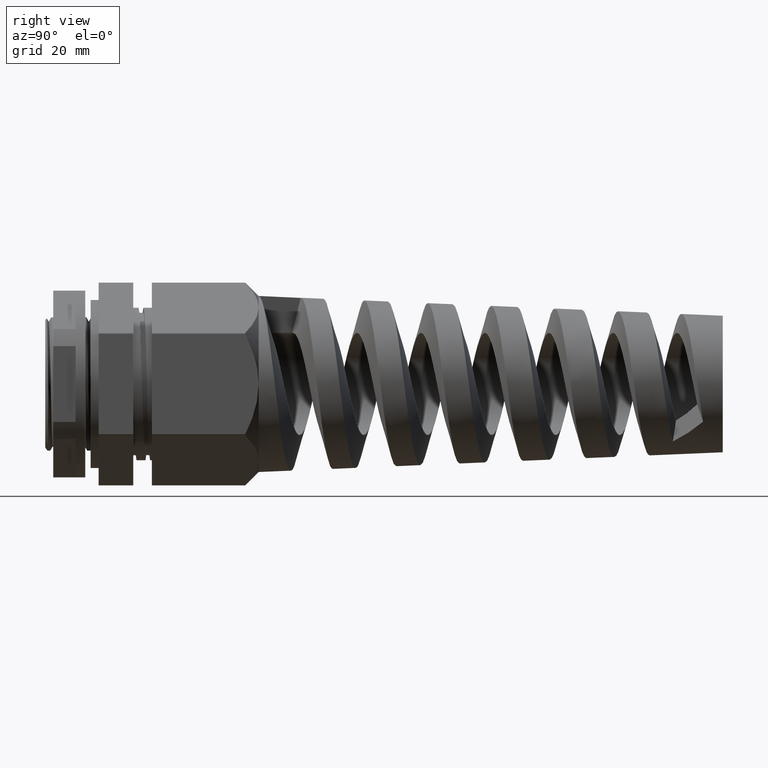
[diagram: clean part render]
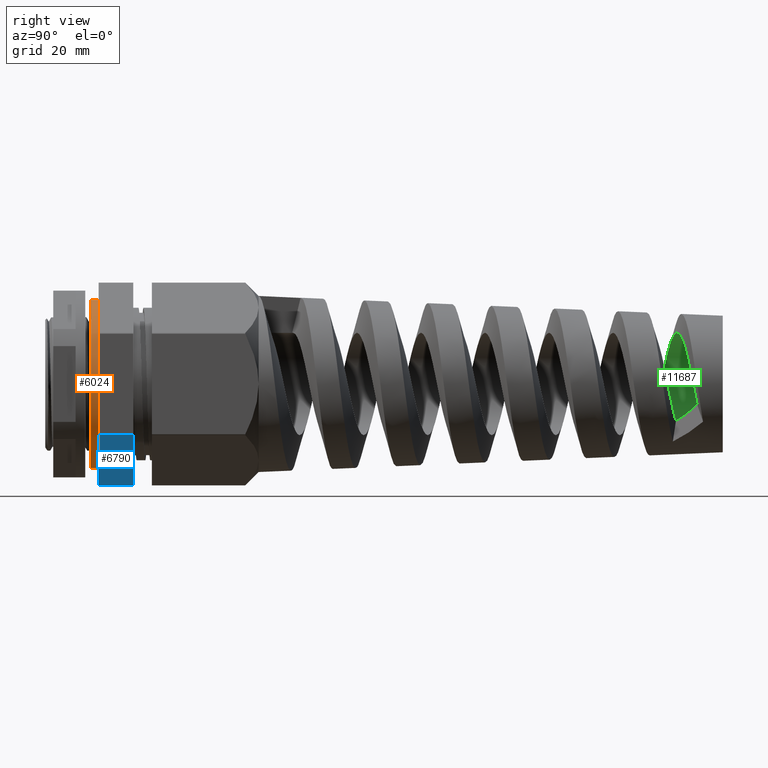
[diagram: same view with three faces highlighted in distinct colors, each labeled with its STEP entity id]
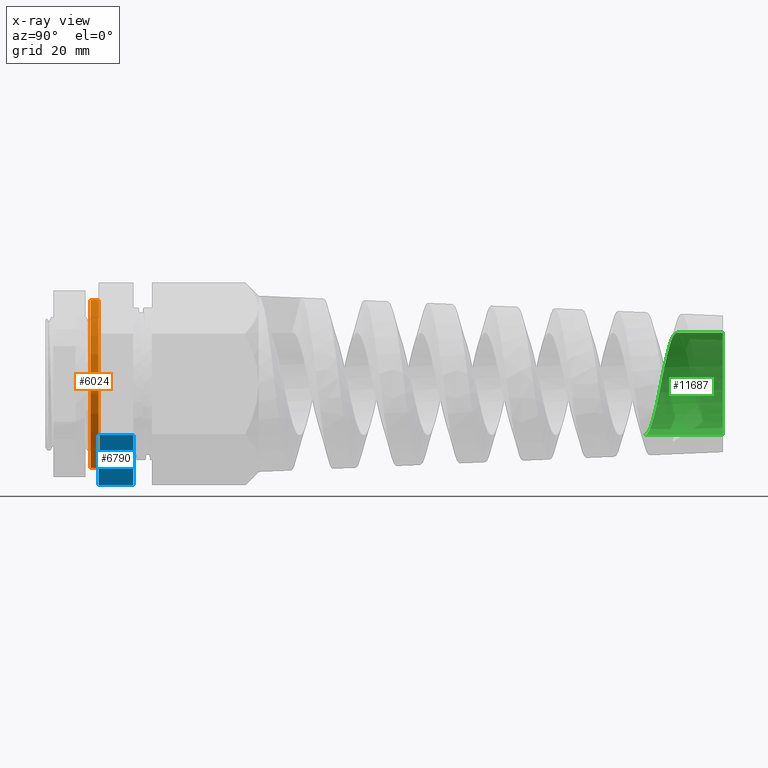
[diagram: x-ray of the same camera — body ghosted, the three highlighted faces saturated]
A machine part, right view with three faces highlighted in distinct colors.
The next image is the same camera in x-ray (body ghosted, the three faces saturated) — at least one of them is partly hidden behind the body in this view.
Their STEP definitions:

[orange] entity #6024 — the highlighted cylindrical surface (partial cylindrical patch) has radius 15.75 mm, axis along (-0, 1, -0).
#196 = DIRECTION ( 'NONE',  ( -0.0000000000000000000, 1.000000000000000000, -0.0000000000000000000 ) ) ;
#266 = DIRECTION ( 'NONE',  ( 0.0000000000000000000, 0.0000000000000000000, -1.000000000000000000 ) ) ;
#589 = DIRECTION ( 'NONE',  ( 0.0000000000000000000, -1.000000000000000000, 0.0000000000000000000 ) ) ;
#631 = CARTESIAN_POINT ( 'NONE',  ( 0.0000000000000000000, -1.500000000000000000, 0.0000000000000000000 ) ) ;
#933 = CARTESIAN_POINT ( 'NONE',  ( 1.928818708657081300E-015, -1.500000000000000000, -15.75000000000000000 ) ) ;
#1966 = CARTESIAN_POINT ( 'NONE',  ( 0.0000000000000000000, -1.500000000000000000, 15.75000000000000000 ) ) ;
#1975 = AXIS2_PLACEMENT_3D ( 'NONE', #10093, #8978, #6635 ) ;
#2068 = VECTOR ( 'NONE', #196, 1000.000000000000000 ) ;
#2076 = EDGE_CURVE ( 'NONE', #5223, #4890, #4461, .T. ) ;
#4461 = CIRCLE ( 'NONE', #9573, 15.75000000000000000 ) ;
#4533 = CARTESIAN_POINT ( 'NONE',  ( 1.928818708657081300E-015, -1.500000000000000000, -15.75000000000000000 ) ) ;
#4753 = CARTESIAN_POINT ( 'NONE',  ( 0.0000000000000000000, 0.0000000000000000000, 0.0000000000000000000 ) ) ;
#4866 = CARTESIAN_POINT ( 'NONE',  ( 0.0000000000000000000, 0.0000000000000000000, 15.75000000000000000 ) ) ;
#4890 = VERTEX_POINT ( 'NONE', #1966 ) ;
#5223 = VERTEX_POINT ( 'NONE', #4533 ) ;
#5923 = DIRECTION ( 'NONE',  ( 0.0000000000000000000, 0.0000000000000000000, -1.000000000000000000 ) ) ;
#6024 = ADVANCED_FACE ( 'NONE', ( #9217 ), #8118, .T. ) ;
#6113 = ORIENTED_EDGE ( 'NONE', *, *, #13710, .F. ) ;
#6136 = AXIS2_PLACEMENT_3D ( 'NONE', #4753, #12703, #5923 ) ;
#6635 = DIRECTION ( 'NONE',  ( 0.0000000000000000000, 0.0000000000000000000, 1.000000000000000000 ) ) ;
#6974 = CIRCLE ( 'NONE', #6136, 15.75000000000000000 ) ;
#7242 = CARTESIAN_POINT ( 'NONE',  ( 0.0000000000000000000, -1.500000000000000000, 15.75000000000000000 ) ) ;
#7899 = LINE ( 'NONE', #7242, #2068 ) ;
#8118 = CYLINDRICAL_SURFACE ( 'NONE', #1975, 15.75000000000000000 ) ;
#8223 = VERTEX_POINT ( 'NONE', #9968 ) ;
#8467 = ORIENTED_EDGE ( 'NONE', *, *, #9981, .T. ) ;
#8791 = VECTOR ( 'NONE', #11336, 1000.000000000000000 ) ;
#8978 = DIRECTION ( 'NONE',  ( -0.0000000000000000000, 1.000000000000000000, -0.0000000000000000000 ) ) ;
#9217 = FACE_OUTER_BOUND ( 'NONE', #14766, .T. ) ;
#9573 = AXIS2_PLACEMENT_3D ( 'NONE', #631, #589, #266 ) ;
#9968 = CARTESIAN_POINT ( 'NONE',  ( 1.928818708657081300E-015, 0.0000000000000000000, -15.75000000000000000 ) ) ;
#9981 = EDGE_CURVE ( 'NONE', #5223, #8223, #14662, .T. ) ;
#10093 = CARTESIAN_POINT ( 'NONE',  ( 0.0000000000000000000, -1.500000000000000000, 0.0000000000000000000 ) ) ;
#11336 = DIRECTION ( 'NONE',  ( -0.0000000000000000000, 1.000000000000000000, -0.0000000000000000000 ) ) ;
#11880 = ORIENTED_EDGE ( 'NONE', *, *, #2076, .F. ) ;
#12703 = DIRECTION ( 'NONE',  ( 0.0000000000000000000, -1.000000000000000000, 0.0000000000000000000 ) ) ;
#13565 = ORIENTED_EDGE ( 'NONE', *, *, #14264, .T. ) ;
#13710 = EDGE_CURVE ( 'NONE', #4890, #14324, #7899, .T. ) ;
#14264 = EDGE_CURVE ( 'NONE', #8223, #14324, #6974, .T. ) ;
#14324 = VERTEX_POINT ( 'NONE', #4866 ) ;
#14662 = LINE ( 'NONE', #933, #8791 ) ;
#14766 = EDGE_LOOP ( 'NONE', ( #11880, #8467, #13565, #6113 ) ) ;

[blue] entity #6790 — the highlighted planar face has unit normal (-0.5, 0, 0.866).
#446 = VERTEX_POINT ( 'NONE', #7749 ) ;
#1762 = CARTESIAN_POINT ( 'NONE',  ( 0.09141556395964207900, 0.0000000000000000000, -18.99978008279742200 ) ) ;
#1767 = CARTESIAN_POINT ( 'NONE',  ( 16.40858443604036100, 0.0000000000000000000, -9.579058242089042000 ) ) ;
#3389 = ORIENTED_EDGE ( 'NONE', *, *, #8984, .F. ) ;
#4188 = DIRECTION ( 'NONE',  ( -0.4999999999999999400, 0.0000000000000000000, 0.8660254037844387100 ) ) ;
#4647 = VECTOR ( 'NONE', #12676, 1000.000000000000000 ) ;
#4733 = EDGE_LOOP ( 'NONE', ( #3389, #11386, #8148, #13546 ) ) ;
#4887 = CARTESIAN_POINT ( 'NONE',  ( 16.40858443604036100, 6.500000000000000000, -9.579058242089047300 ) ) ;
#5271 = EDGE_CURVE ( 'NONE', #8144, #446, #13016, .T. ) ;
#5288 = CARTESIAN_POINT ( 'NONE',  ( 16.50000000000000000, 6.500000000000000000, -9.526279441628823000 ) ) ;
#6074 = VECTOR ( 'NONE', #12872, 1000.000000000000000 ) ;
#6271 = EDGE_CURVE ( 'NONE', #6331, #446, #10756, .T. ) ;
#6331 = VERTEX_POINT ( 'NONE', #4887 ) ;
#6447 = LINE ( 'NONE', #11772, #6074 ) ;
#6790 = ADVANCED_FACE ( 'NONE', ( #13851 ), #11043, .F. ) ;
#7081 = CARTESIAN_POINT ( 'NONE',  ( 16.50000000000000000, 6.500000000000000000, -9.526279441628823000 ) ) ;
#7749 = CARTESIAN_POINT ( 'NONE',  ( 0.09141556395964034500, 6.500000000000000000, -18.99978008279742500 ) ) ;
#8004 = DIRECTION ( 'NONE',  ( -0.8660254037844387100, 0.0000000000000000000, -0.4999999999999999400 ) ) ;
#8049 = CARTESIAN_POINT ( 'NONE',  ( 0.09141556395964207900, -0.1902966713168141600, -18.99978008279743200 ) ) ;
#8144 = VERTEX_POINT ( 'NONE', #1762 ) ;
#8148 = ORIENTED_EDGE ( 'NONE', *, *, #5271, .T. ) ;
#8984 = EDGE_CURVE ( 'NONE', #10790, #6331, #6447, .T. ) ;
#10235 = CARTESIAN_POINT ( 'NONE',  ( 16.50000000000000000, 0.0000000000000000000, -9.526279441628823000 ) ) ;
#10756 = LINE ( 'NONE', #7081, #4647 ) ;
#10790 = VERTEX_POINT ( 'NONE', #1767 ) ;
#10872 = VECTOR ( 'NONE', #8004, 1000.000000000000000 ) ;
#10931 = AXIS2_PLACEMENT_3D ( 'NONE', #5288, #4188, #12164 ) ;
#11043 = PLANE ( 'NONE',  #10931 ) ;
#11386 = ORIENTED_EDGE ( 'NONE', *, *, #14633, .T. ) ;
#11772 = CARTESIAN_POINT ( 'NONE',  ( 16.40858443604036100, -0.1902966713168141600, -9.579058242089047300 ) ) ;
#12164 = DIRECTION ( 'NONE',  ( 0.8660254037844386000, 0.0000000000000000000, 0.4999999999999998900 ) ) ;
#12656 = VECTOR ( 'NONE', #13594, 1000.000000000000000 ) ;
#12676 = DIRECTION ( 'NONE',  ( -0.8660254037844387100, 0.0000000000000000000, -0.4999999999999999400 ) ) ;
#12872 = DIRECTION ( 'NONE',  ( -0.0000000000000000000, 1.000000000000000000, -0.0000000000000000000 ) ) ;
#13016 = LINE ( 'NONE', #8049, #12656 ) ;
#13546 = ORIENTED_EDGE ( 'NONE', *, *, #6271, .F. ) ;
#13594 = DIRECTION ( 'NONE',  ( -0.0000000000000000000, 1.000000000000000000, -0.0000000000000000000 ) ) ;
#13803 = LINE ( 'NONE', #10235, #10872 ) ;
#13851 = FACE_OUTER_BOUND ( 'NONE', #4733, .T. ) ;
#14633 = EDGE_CURVE ( 'NONE', #10790, #8144, #13803, .T. ) ;

[green] entity #11687 — the highlighted cylindrical surface (partial cylindrical patch) has radius 9.6 mm, axis along (-0, -1, -0).
#92 = CARTESIAN_POINT ( 'NONE',  ( -6.038467740976767800, 107.1536739791736000, 7.703461681116778000 ) ) ;
#148 = CARTESIAN_POINT ( 'NONE',  ( 1.417969255704982300E-015, 102.4224696787068500, -9.599999999999138100 ) ) ;
#646 = DIRECTION ( 'NONE',  ( -0.0000000000000000000, -1.000000000000000000, -0.0000000000000000000 ) ) ;
#1299 = CARTESIAN_POINT ( 'NONE',  ( -8.526803910840815300, 106.4036739791736000, 4.806249015325916800 ) ) ;
#2244 = ORIENTED_EDGE ( 'NONE', *, *, #5868, .T. ) ;
#2494 = CARTESIAN_POINT ( 'NONE',  ( -9.717011480949281600, 105.6536739791736000, 1.177328505707510700 ) ) ;
#2942 = EDGE_CURVE ( 'NONE', #3974, #9770, #11495, .T. ) ;
#3367 = VECTOR ( 'NONE', #7150, 1000.000000000000000 ) ;
#3603 = CARTESIAN_POINT ( 'NONE',  ( -0.3638973932302016500, 108.3501363126137600, 9.599999999999138100 ) ) ;
#3657 = CARTESIAN_POINT ( 'NONE',  ( -9.427892138011639400, 104.9036739791736000, -2.630829596395392500 ) ) ;
#3974 = VERTEX_POINT ( 'NONE', #10963 ) ;
#3976 = CARTESIAN_POINT ( 'NONE',  ( 0.0000000000000000000, 117.0000000000000000, 0.0000000000000000000 ) ) ;
#4031 = AXIS2_PLACEMENT_3D ( 'NONE', #3976, #11969, #5128 ) ;
#4143 = CARTESIAN_POINT ( 'NONE',  ( -1.041662030152506100E-014, 108.4224696787068000, 9.599999999999138100 ) ) ;
#4539 = AXIS2_PLACEMENT_3D ( 'NONE', #11014, #646, #7676 ) ;
#4783 = CARTESIAN_POINT ( 'NONE',  ( -1.041662030152506100E-014, 108.4224696787068000, 9.599999999999138100 ) ) ;
#4841 = CARTESIAN_POINT ( 'NONE',  ( -7.703461681116778000, 104.1536739791736000, -6.038467740976767800 ) ) ;
#5128 = DIRECTION ( 'NONE',  ( 0.0000000000000000000, 0.0000000000000000000, -1.000000000000000000 ) ) ;
#5183 = LINE ( 'NONE', #8822, #10913 ) ;
#5868 = EDGE_CURVE ( 'NONE', #3974, #7791, #9574, .T. ) ;
#5956 = CARTESIAN_POINT ( 'NONE',  ( -0.7267505453439392400, 108.2786739791735900, 9.572451809480460500 ) ) ;
#6010 = CARTESIAN_POINT ( 'NONE',  ( -4.806249015325917600, 103.4036739791736200, -8.526803910840815300 ) ) ;
#6053 = CARTESIAN_POINT ( 'NONE',  ( 1.417969255704982300E-015, 102.4224696787068500, -9.599999999999138100 ) ) ;
#6236 = ORIENTED_EDGE ( 'NONE', *, *, #6770, .F. ) ;
#6770 = EDGE_CURVE ( 'NONE', #9770, #13711, #5183, .T. ) ;
#7139 = CARTESIAN_POINT ( 'NONE',  ( -4.334648668686083900, 107.5286739791736000, 8.565676909564206900 ) ) ;
#7150 = DIRECTION ( 'NONE',  ( -0.0000000000000000000, -1.000000000000000000, -0.0000000000000000000 ) ) ;
#7202 = CARTESIAN_POINT ( 'NONE',  ( -1.534094311727549200, 102.7274078495645100, -9.599999999999111500 ) ) ;
#7676 = DIRECTION ( 'NONE',  ( 0.0000000000000000000, 0.0000000000000000000, -1.000000000000000000 ) ) ;
#7791 = VERTEX_POINT ( 'NONE', #4143 ) ;
#8305 = CARTESIAN_POINT ( 'NONE',  ( -7.282635825908792900, 106.7786739791735900, 6.254855348221347800 ) ) ;
#8354 =( BOUNDED_CURVE ( )  B_SPLINE_CURVE ( 2, ( #4783, #3603, #5956, #13841, #7139, #92, #8305, #1299, #9472, #2494, #10559, #3657, #11681, #4841, #12778, #6010, #13896, #7202, #148 ),
 .UNSPECIFIED., .F., .T. ) 
 B_SPLINE_CURVE_WITH_KNOTS ( ( 3, 2, 2, 2, 2, 2, 2, 2, 2, 3 ),
 ( 0.1411287773849920800, 0.1428571428571429000, 0.1517857142857143000, 0.1607142857142857000, 0.1696428571428571000, 0.1785714285714286000, 0.1875000000000000000, 0.1964285714285714000, 0.2053571428571429000, 0.2125573488135630600 ),
 .UNSPECIFIED. ) 
 CURVE ( )  GEOMETRIC_REPRESENTATION_ITEM ( )  RATIONAL_B_SPLINE_CURVE ( ( 0.9940009760863275400, 0.9962804735142909400, 1.000000000000000000, 0.9807852804032304300, 1.000000000000000000, 0.9807852804032304300, 1.000000000000000000, 0.9807852804032304300, 1.000000000000000000, 0.9807852804032304300, 1.000000000000000000, 0.9807852804032304300, 1.000000000000000000, 0.9807852804032304300, 1.000000000000000000, 0.9807852804032304300, 1.000000000000000000, 0.9845048068889403800, 0.9940009760863264300 ) ) 
 REPRESENTATION_ITEM ( '' )  );
#8760 = CYLINDRICAL_SURFACE ( 'NONE', #4539, 9.599999999999994300 ) ;
#8822 = CARTESIAN_POINT ( 'NONE',  ( 0.0000000000000000000, -11.00000000000000000, -9.599999999999994300 ) ) ;
#8869 = EDGE_LOOP ( 'NONE', ( #13899, #2244, #9811, #6236 ) ) ;
#9130 = FACE_OUTER_BOUND ( 'NONE', #8869, .T. ) ;
#9472 = CARTESIAN_POINT ( 'NONE',  ( -9.121907695895046700, 106.0286739791736000, 2.991788760516717700 ) ) ;
#9574 = LINE ( 'NONE', #13849, #3367 ) ;
#9628 = CARTESIAN_POINT ( 'NONE',  ( 0.0000000000000000000, 117.0000000000000000, -9.599999999999999600 ) ) ;
#9770 = VERTEX_POINT ( 'NONE', #9628 ) ;
#9811 = ORIENTED_EDGE ( 'NONE', *, *, #11890, .T. ) ;
#9950 = DIRECTION ( 'NONE',  ( -0.0000000000000000000, -1.000000000000000000, -0.0000000000000000000 ) ) ;
#10559 = CARTESIAN_POINT ( 'NONE',  ( -9.572451809480460500, 105.2786739791736000, -0.7267505453439409000 ) ) ;
#10913 = VECTOR ( 'NONE', #9950, 1000.000000000000000 ) ;
#10963 = CARTESIAN_POINT ( 'NONE',  ( 1.175660927181458800E-015, 117.0000000000000000, 9.599999999999997900 ) ) ;
#11014 = CARTESIAN_POINT ( 'NONE',  ( 0.0000000000000000000, -11.00000000000000000, 0.0000000000000000000 ) ) ;
#11495 = CIRCLE ( 'NONE', #4031, 9.599999999999999600 ) ;
#11681 = CARTESIAN_POINT ( 'NONE',  ( -8.565676909564206900, 104.5286739791736000, -4.334648668686082100 ) ) ;
#11687 = ADVANCED_FACE ( 'NONE', ( #9130 ), #8760, .F. ) ;
#11890 = EDGE_CURVE ( 'NONE', #7791, #13711, #8354, .T. ) ;
#11969 = DIRECTION ( 'NONE',  ( -0.0000000000000000000, -1.000000000000000000, -0.0000000000000000000 ) ) ;
#12778 = CARTESIAN_POINT ( 'NONE',  ( -6.254855348221349600, 103.7786739791736200, -7.282635825908792900 ) ) ;
#13711 = VERTEX_POINT ( 'NONE', #6053 ) ;
#13841 = CARTESIAN_POINT ( 'NONE',  ( -2.630829596395392900, 107.9036739791736000, 9.427892138011639400 ) ) ;
#13849 = CARTESIAN_POINT ( 'NONE',  ( 1.175660927181458400E-015, -11.00000000000000000, 9.599999999999994300 ) ) ;
#13896 = CARTESIAN_POINT ( 'NONE',  ( -2.991788760516714200, 103.0286739791736200, -9.121907695895048500 ) ) ;
#13899 = ORIENTED_EDGE ( 'NONE', *, *, #2942, .F. ) ;